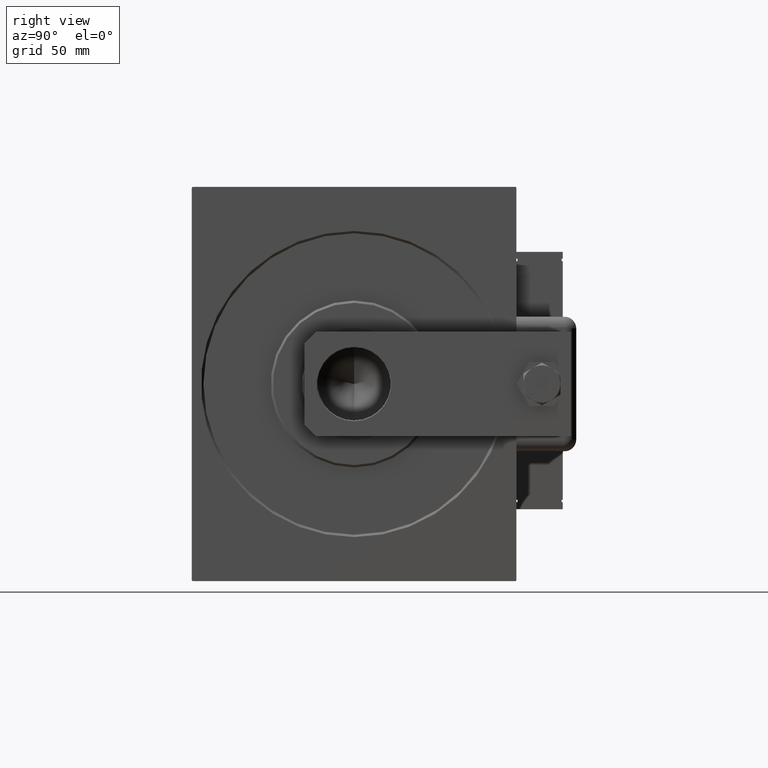
[diagram: clean part render]
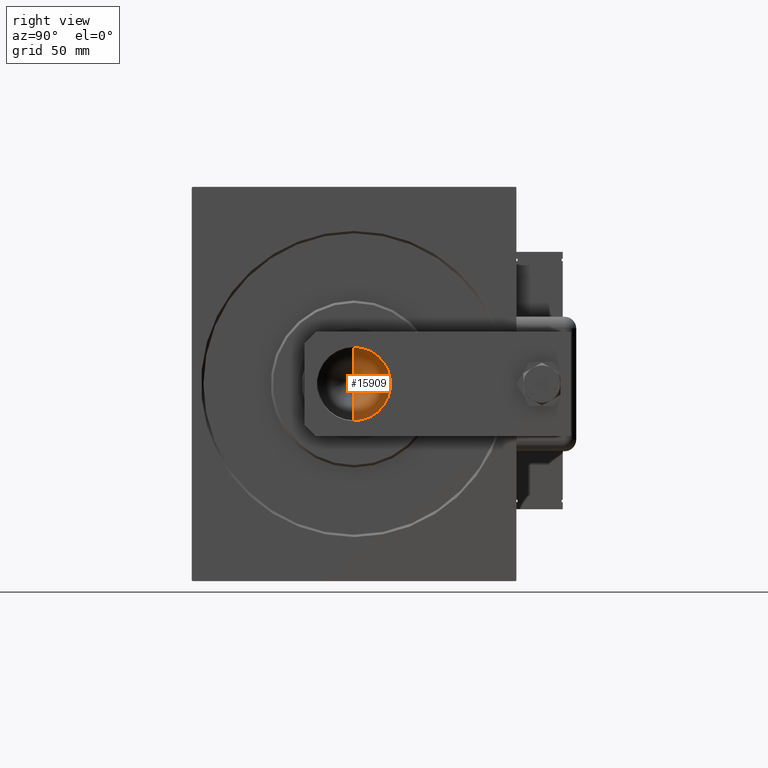
[diagram: same view with one face highlighted and labeled with its STEP entity id]
A machine part, right view. The second image highlights one B-rep face of the part: STEP entity #15909.
In plain terms, the highlighted conical surface has half-angle 59 deg.
Its self-contained STEP definition (entity closure, byte-faithful):
#3811 = CARTESIAN_POINT ( 'NONE',  ( 0.000000000000000000, 0.000000000000000000, 106.0000000000000142 ) ) ;
#5218 = AXIS2_PLACEMENT_3D ( 'NONE', #3811, #35092, #53089 ) ;
#5222 = CONICAL_SURFACE ( 'NONE', #51397, 15.74999999999999289, 1.029744258676653867 ) ;
#5627 = DIRECTION ( 'NONE',  ( -0.8571673007021120005, 1.049727191138618326E-16, 0.5150380749100547106 ) ) ;
#5863 = VERTEX_POINT ( 'NONE', #12439 ) ;
#8114 = ORIENTED_EDGE ( 'NONE', *, *, #53171, .F. ) ;
#8289 = DIRECTION ( 'NONE',  ( 1.000000000000000000, 0.000000000000000000, 0.000000000000000000 ) ) ;
#12439 = CARTESIAN_POINT ( 'NONE',  ( -15.74999999999999289, 1.928818708657080556E-15, 106.0000000000000142 ) ) ;
#15909 = ADVANCED_FACE ( 'NONE', ( #37250 ), #5222, .F. ) ;
#16569 = VECTOR ( 'NONE', #55856, 1000.000000000000000 ) ;
#22251 = ORIENTED_EDGE ( 'NONE', *, *, #24098, .T. ) ;
#23341 = LINE ( 'NONE', #46335, #30567 ) ;
#24098 = EDGE_CURVE ( 'NONE', #35597, #5863, #30678, .T. ) ;
#25617 = EDGE_CURVE ( 'NONE', #43631, #35597, #45850, .T. ) ;
#28441 = CARTESIAN_POINT ( 'NONE',  ( 15.74999999999999289, 0.000000000000000000, 106.0000000000000142 ) ) ;
#30441 = CARTESIAN_POINT ( 'NONE',  ( 0.000000000000000000, 0.000000000000000000, 106.0000000000000142 ) ) ;
#30567 = VECTOR ( 'NONE', #5627, 1000.000000000000000 ) ;
#30678 = CIRCLE ( 'NONE', #5218, 15.74999999999999289 ) ;
#35092 = DIRECTION ( 'NONE',  ( -0.000000000000000000, -0.000000000000000000, 1.000000000000000000 ) ) ;
#35439 = DIRECTION ( 'NONE',  ( -0.000000000000000000, -0.000000000000000000, 1.000000000000000000 ) ) ;
#35597 = VERTEX_POINT ( 'NONE', #53806 ) ;
#37250 = FACE_OUTER_BOUND ( 'NONE', #47331, .T. ) ;
#42165 = CARTESIAN_POINT ( 'NONE',  ( -1.199718644317817648E-14, 0.000000000000000000, 96.53644525031593560 ) ) ;
#43631 = VERTEX_POINT ( 'NONE', #42165 ) ;
#43947 = ORIENTED_EDGE ( 'NONE', *, *, #25617, .T. ) ;
#45850 = LINE ( 'NONE', #28441, #16569 ) ;
#46335 = CARTESIAN_POINT ( 'NONE',  ( -15.74999999999999289, 1.928818708657080556E-15, 106.0000000000000142 ) ) ;
#47331 = EDGE_LOOP ( 'NONE', ( #8114, #43947, #22251 ) ) ;
#51397 = AXIS2_PLACEMENT_3D ( 'NONE', #30441, #35439, #8289 ) ;
#53089 = DIRECTION ( 'NONE',  ( 1.000000000000000000, 0.000000000000000000, 0.000000000000000000 ) ) ;
#53171 = EDGE_CURVE ( 'NONE', #43631, #5863, #23341, .T. ) ;
#53806 = CARTESIAN_POINT ( 'NONE',  ( 15.74999999999999289, 0.000000000000000000, 106.0000000000000142 ) ) ;
#55856 = DIRECTION ( 'NONE',  ( 0.8571673007021120005, 0.000000000000000000, 0.5150380749100547106 ) ) ;